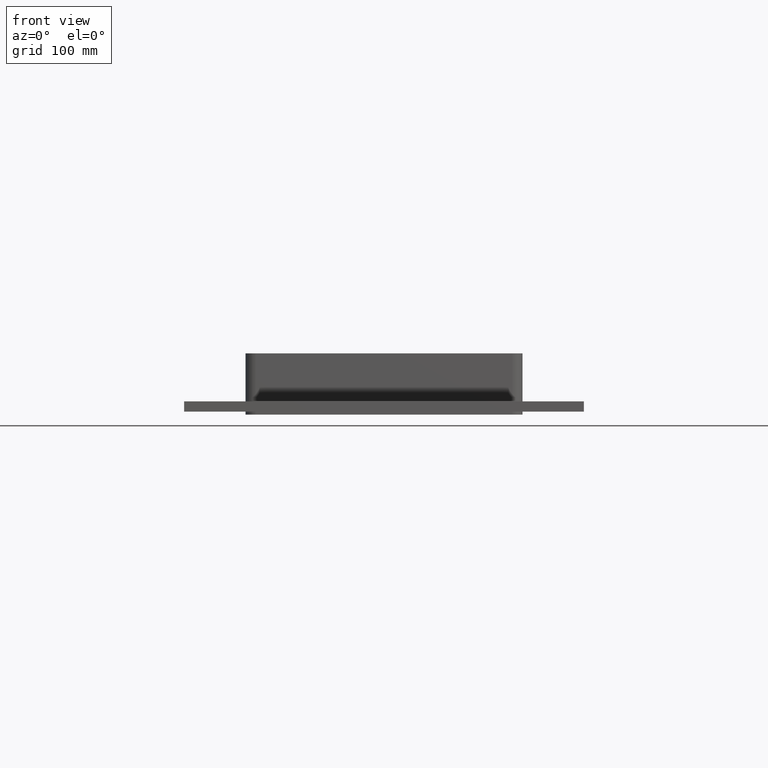
[diagram: clean part render]
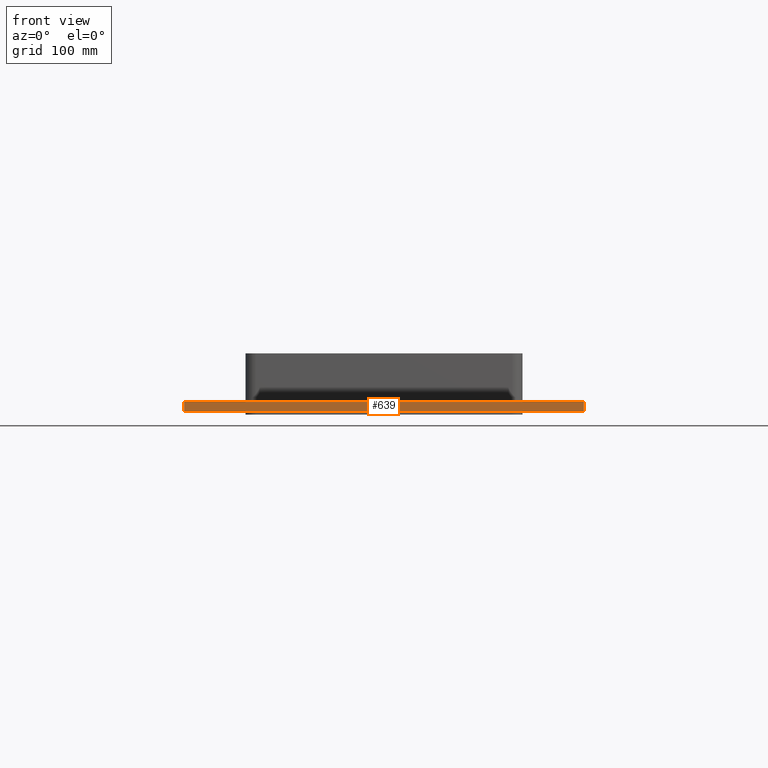
[diagram: same view with one face highlighted and labeled with its STEP entity id]
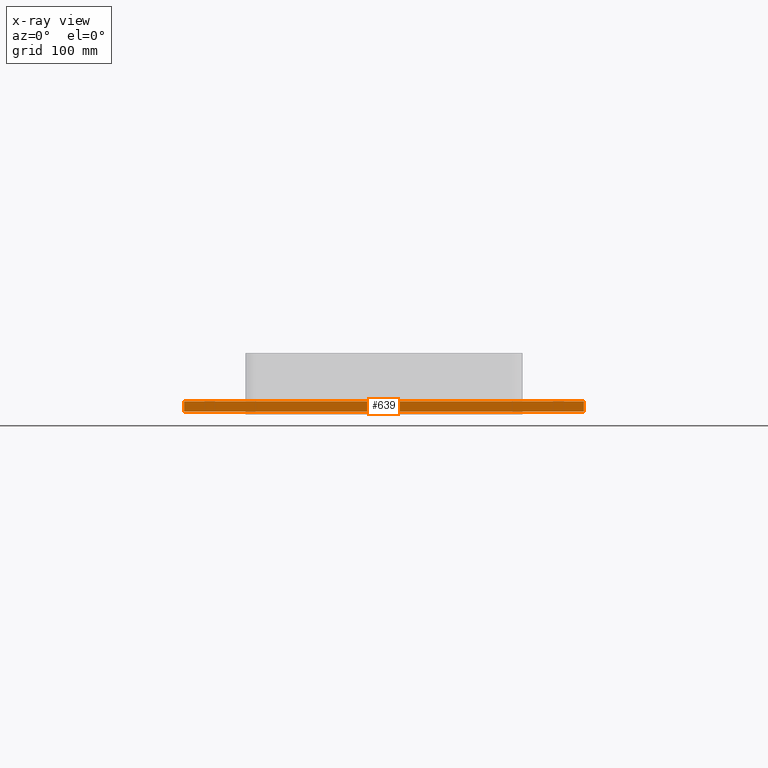
[diagram: x-ray of the same camera — body ghosted, the highlighted face saturated]
A machine part, front view. The second image highlights one B-rep face of the part: STEP entity #639.
The next image is the same camera in x-ray: the body ghosted, the highlighted face saturated — about 0% of this face is hidden behind the body in this view.
In plain terms, the highlighted planar face has unit normal (0, -1, 0).
Its self-contained STEP definition (entity closure, byte-faithful):
#521=CARTESIAN_POINT('',(-195.49999999999997,-298.00000000000006,-27.0));
#522=VERTEX_POINT('',#521);
#531=CARTESIAN_POINT('',(-195.49999999999997,-298.00000000000006,-17.0));
#532=VERTEX_POINT('',#531);
#533=CARTESIAN_POINT('',(-195.49999999999997,-298.00000000000006,-27.0));
#534=DIRECTION('',(0.0,0.0,1.0));
#535=VECTOR('',#534,10.0);
#536=LINE('',#533,#535);
#537=EDGE_CURVE('',#522,#532,#536,.T.);
#592=CARTESIAN_POINT('',(195.50000000000006,-298.0,-27.0));
#593=VERTEX_POINT('',#592);
#601=CARTESIAN_POINT('',(195.50000000000006,-298.0,-17.0));
#602=VERTEX_POINT('',#601);
#609=CARTESIAN_POINT('',(195.50000000000006,-298.0,-27.0));
#610=DIRECTION('',(0.0,0.0,1.0));
#611=VECTOR('',#610,10.0);
#612=LINE('',#609,#611);
#613=EDGE_CURVE('',#593,#602,#612,.T.);
#618=CARTESIAN_POINT('',(-195.49999999999997,-298.00000000000006,-27.0));
#619=DIRECTION('',(0.0,-1.0,0.0));
#620=DIRECTION('',(1.0,0.0,0.0));
#621=AXIS2_PLACEMENT_3D('',#618,#619,#620);
#622=PLANE('',#621);
#623=CARTESIAN_POINT('',(195.50000000000006,-298.0,-27.0));
#624=DIRECTION('',(-1.0,0.0,0.0));
#625=VECTOR('',#624,391.0);
#626=LINE('',#623,#625);
#627=EDGE_CURVE('',#593,#522,#626,.T.);
#628=ORIENTED_EDGE('',*,*,#627,.F.);
#629=ORIENTED_EDGE('',*,*,#613,.T.);
#630=CARTESIAN_POINT('',(-195.49999999999994,-298.00000000000006,-17.0));
#631=DIRECTION('',(1.0,0.0,0.0));
#632=VECTOR('',#631,391.0);
#633=LINE('',#630,#632);
#634=EDGE_CURVE('',#532,#602,#633,.T.);
#635=ORIENTED_EDGE('',*,*,#634,.F.);
#636=ORIENTED_EDGE('',*,*,#537,.F.);
#637=EDGE_LOOP('',(#628,#629,#635,#636));
#638=FACE_OUTER_BOUND('',#637,.T.);
#639=ADVANCED_FACE('',(#638),#622,.T.);